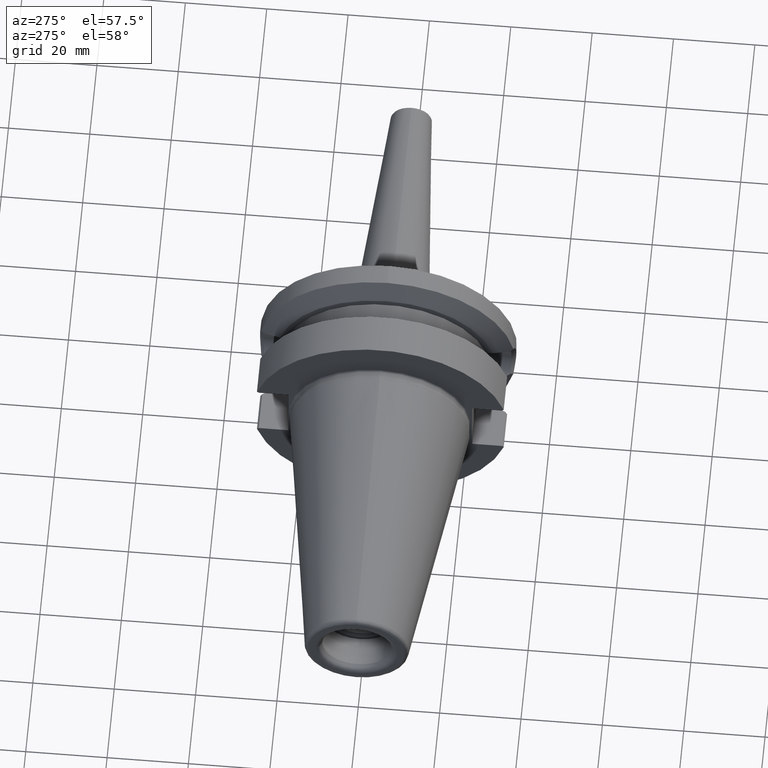
[diagram: clean part render]
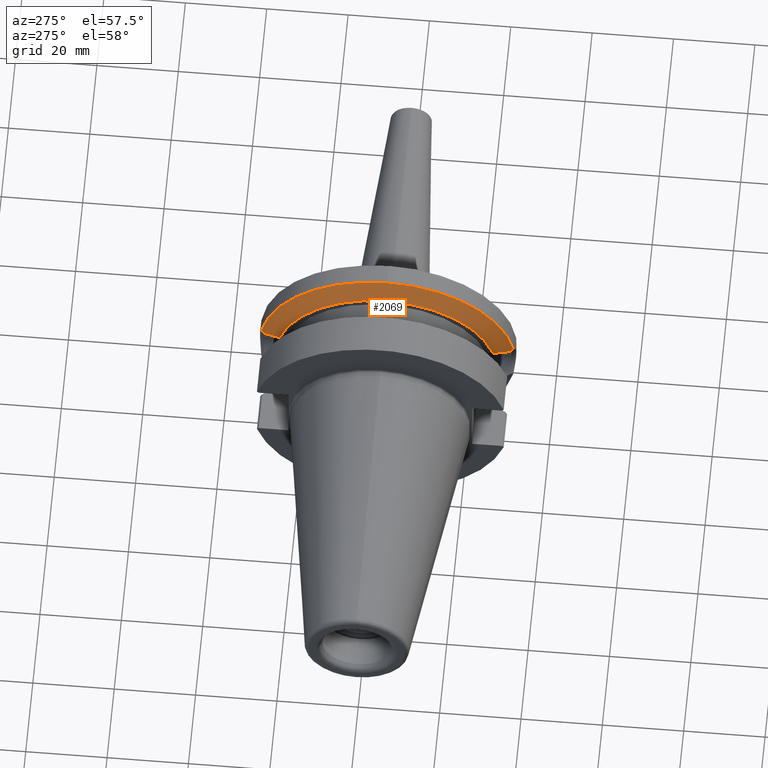
[diagram: same view with one face highlighted and labeled with its STEP entity id]
A machine part, auxiliary view. The second image highlights one B-rep face of the part: STEP entity #2069.
In plain terms, the highlighted conical surface has half-angle 60 deg.
Its self-contained STEP definition (entity closure, byte-faithful):
#539=CARTESIAN_POINT('',(2.16309635E1,0.E0,0.E0));
#540=DIRECTION('',(1.E0,0.E0,0.E0));
#541=DIRECTION('',(0.E0,0.E0,1.E0));
#542=AXIS2_PLACEMENT_3D('',#539,#540,#541);
#544=CARTESIAN_POINT('',(1.91E1,-2.622423715090E1,6.897825744392E0));
#545=CARTESIAN_POINT('',(1.937816045766E1,-2.676643204292E1,6.730473604449E0));
#546=CARTESIAN_POINT('',(1.990303269829E1,-2.779127514901E1,6.368641630073E0));
#547=CARTESIAN_POINT('',(2.059086834754E1,-2.913753076905E1,5.766648249127E0));
#548=CARTESIAN_POINT('',(2.099357945593E1,-2.992716271349E1,5.325812749184E0));
#549=CARTESIAN_POINT('',(2.117998131741E1,-3.029289531603E1,5.098022438631E0));
#551=CARTESIAN_POINT('',(2.16309635E1,3.098871085802E1,5.652415356123E0));
#552=CARTESIAN_POINT('',(2.155414334301E1,3.087051438261E1,5.558911847172E0));
#553=CARTESIAN_POINT('',(2.140215551002E1,3.063633978232E1,5.373035076681E0));
#554=CARTESIAN_POINT('',(2.125348414074E1,3.040662765083E1,5.189343646915E0));
#555=CARTESIAN_POINT('',(2.117998131741E1,3.029289531603E1,5.098022438631E0));
#557=CARTESIAN_POINT('',(2.16309635E1,0.E0,0.E0));
#558=DIRECTION('',(1.E0,0.E0,0.E0));
#559=DIRECTION('',(0.E0,9.837685986673E-1,1.794417573372E-1));
#560=AXIS2_PLACEMENT_3D('',#557,#558,#559);
#595=CARTESIAN_POINT('',(2.117998131741E1,-3.029289531603E1,5.098022438631E0));
#596=CARTESIAN_POINT('',(2.125097782396E1,-3.040274957858E1,5.186229754596E0));
#597=CARTESIAN_POINT('',(2.139711972524E1,-3.062856992174E1,5.366845705380E0));
#598=CARTESIAN_POINT('',(2.155161500107E1,-3.086662424338E1,5.555834414729E0));
#599=CARTESIAN_POINT('',(2.16309635E1,-3.098871085802E1,5.652415356123E0));
#666=CARTESIAN_POINT('',(1.91E1,0.E0,0.E0));
#667=DIRECTION('',(1.E0,0.E0,0.E0));
#668=DIRECTION('',(0.E0,9.671043850984E-1,2.543798504666E-1));
#669=AXIS2_PLACEMENT_3D('',#666,#667,#668);
#691=CARTESIAN_POINT('',(2.117998131741E1,3.029289531603E1,5.098022438631E0));
#692=CARTESIAN_POINT('',(2.104302031893E1,3.002416890941E1,5.265394095386E0));
#693=CARTESIAN_POINT('',(2.075150822612E1,2.945248076159E1,5.593999777963E0));
#694=CARTESIAN_POINT('',(2.026350284716E1,2.849665761898E1,6.060198415023E0));
#695=CARTESIAN_POINT('',(1.971773001892E1,2.742935446498E1,6.499361055365E0));
#696=CARTESIAN_POINT('',(1.931267643324E1,2.663878951656E1,6.769871338085E0));
#697=CARTESIAN_POINT('',(1.91E1,2.622423715090E1,6.897825744392E0));
#755=CARTESIAN_POINT('',(2.16309635E1,3.098871085802E1,5.652415356123E0));
#1048=CARTESIAN_POINT('',(1.91E1,2.622423715090E1,6.897825744392E0));
#1050=VERTEX_POINT('',#1048);
#1070=CARTESIAN_POINT('',(2.16309635E1,0.E0,3.15E1));
#1071=VERTEX_POINT('',#1070);
#1136=VERTEX_POINT('',#755);
#1143=VERTEX_POINT('',#555);
#1184=VERTEX_POINT('',#595);
#1185=VERTEX_POINT('',#599);
#1192=CARTESIAN_POINT('',(1.91E1,-2.622423715090E1,6.897825744392E0));
#1194=VERTEX_POINT('',#1192);
#2049=CARTESIAN_POINT('',(2.036548175E1,0.E0,0.E0));
#2050=DIRECTION('',(1.E0,0.E0,0.E0));
#2051=DIRECTION('',(0.E0,0.E0,1.E0));
#2052=AXIS2_PLACEMENT_3D('',#2049,#2050,#2051);
#2053=CONICAL_SURFACE('',#2052,2.930812131295E1,6.E1);
#2054=ORIENTED_EDGE('',*,*,#2039,.T.);
#2056=ORIENTED_EDGE('',*,*,#2055,.F.);
#2058=ORIENTED_EDGE('',*,*,#2057,.F.);
#2060=ORIENTED_EDGE('',*,*,#2059,.F.);
#2062=ORIENTED_EDGE('',*,*,#2061,.F.);
#2064=ORIENTED_EDGE('',*,*,#2063,.F.);
#2066=ORIENTED_EDGE('',*,*,#2065,.T.);
#2067=EDGE_LOOP('',(#2054,#2056,#2058,#2060,#2062,#2064,#2066));
#2068=FACE_OUTER_BOUND('',#2067,.F.);
#2069=ADVANCED_FACE('',(#2068),#2053,.T.);
#543=CIRCLE('',#542,3.15E1);
#550=B_SPLINE_CURVE_WITH_KNOTS('',3,(#544,#545,#546,#547,#548,#549),
.UNSPECIFIED.,.F.,.F.,(4,1,1,4),(0.E0,3.333333333333E-1,6.666666666667E-1,1.E0),
.UNSPECIFIED.);
#556=B_SPLINE_CURVE_WITH_KNOTS('',3,(#551,#552,#553,#554,#555),.UNSPECIFIED.,
.F.,.F.,(4,1,4),(0.E0,5.E-1,1.E0),.UNSPECIFIED.);
#561=CIRCLE('',#560,3.15E1);
#600=B_SPLINE_CURVE_WITH_KNOTS('',3,(#595,#596,#597,#598,#599),.UNSPECIFIED.,
.F.,.F.,(4,1,4),(0.E0,5.E-1,1.E0),.UNSPECIFIED.);
#670=CIRCLE('',#669,2.711624262590E1);
#698=B_SPLINE_CURVE_WITH_KNOTS('',3,(#691,#692,#693,#694,#695,#696,#697),
.UNSPECIFIED.,.F.,.F.,(4,1,1,1,4),(0.E0,2.5E-1,5.E-1,7.5E-1,1.E0),
.UNSPECIFIED.);
#2039=EDGE_CURVE('',#1071,#1185,#543,.T.);
#2055=EDGE_CURVE('',#1184,#1185,#600,.T.);
#2057=EDGE_CURVE('',#1194,#1184,#550,.T.);
#2059=EDGE_CURVE('',#1050,#1194,#670,.T.);
#2061=EDGE_CURVE('',#1143,#1050,#698,.T.);
#2063=EDGE_CURVE('',#1136,#1143,#556,.T.);
#2065=EDGE_CURVE('',#1136,#1071,#561,.T.);